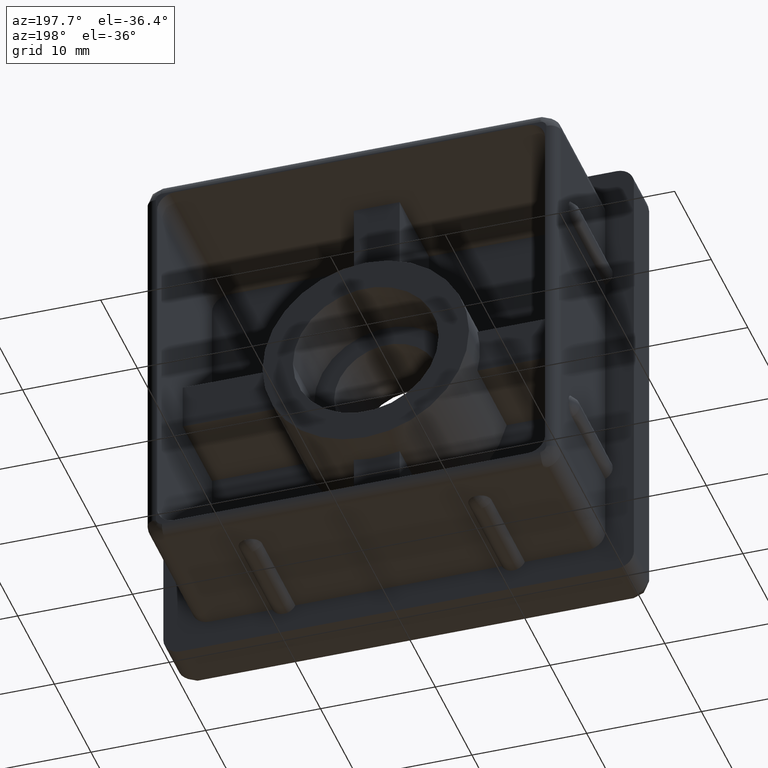
[diagram: clean part render]
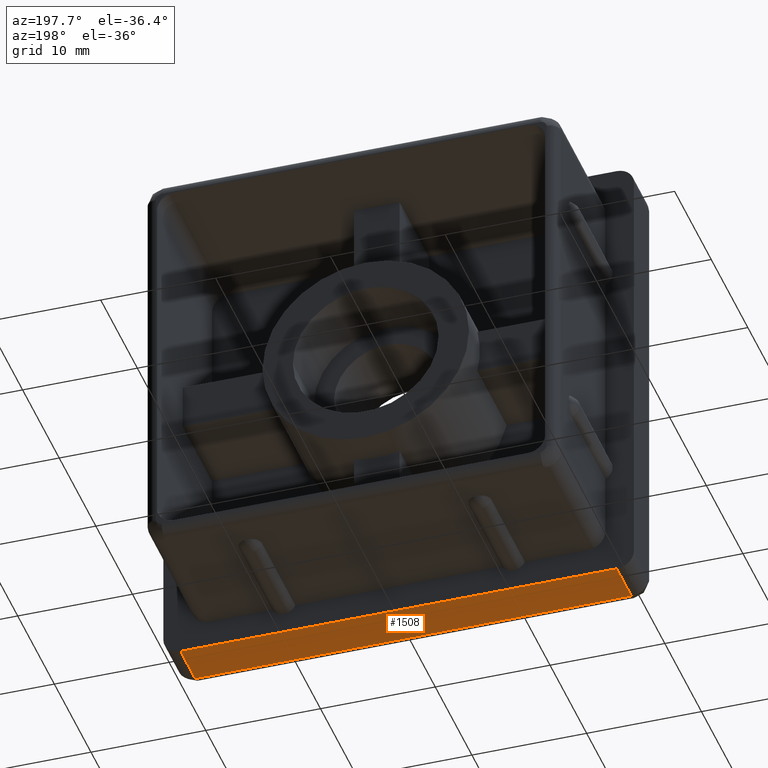
[diagram: same view with one face highlighted and labeled with its STEP entity id]
A machine part, auxiliary view. The second image highlights one B-rep face of the part: STEP entity #1508.
In plain terms, the highlighted planar face has unit normal (-0, 0, -1).
Its self-contained STEP definition (entity closure, byte-faithful):
#53=PLANE('',#1629);
#219=FACE_OUTER_BOUND('',#306,.T.);
#306=EDGE_LOOP('',(#1235,#1236,#1237,#1238));
#362=LINE('',#2974,#490);
#441=LINE('',#3248,#569);
#444=LINE('',#3253,#572);
#445=LINE('',#3255,#573);
#490=VECTOR('',#1712,38.);
#569=VECTOR('',#1939,38.);
#572=VECTOR('',#1946,4.);
#573=VECTOR('',#1949,4.);
#666=VERTEX_POINT('',#2970);
#668=VERTEX_POINT('',#2973);
#738=VERTEX_POINT('',#3178);
#753=VERTEX_POINT('',#3242);
#821=EDGE_CURVE('',#666,#668,#362,.T.);
#945=EDGE_CURVE('',#738,#753,#441,.T.);
#948=EDGE_CURVE('',#753,#666,#444,.T.);
#949=EDGE_CURVE('',#668,#738,#445,.T.);
#1235=ORIENTED_EDGE('',*,*,#945,.F.);
#1236=ORIENTED_EDGE('',*,*,#949,.F.);
#1237=ORIENTED_EDGE('',*,*,#821,.F.);
#1238=ORIENTED_EDGE('',*,*,#948,.F.);
#1508=ADVANCED_FACE('',(#219),#53,.T.);
#1629=AXIS2_PLACEMENT_3D('',#3254,#1947,#1948);
#1712=DIRECTION('',(-1.,0.,2.16628882853689E-16));
#1939=DIRECTION('',(1.,0.,-2.16628882853689E-16));
#1946=DIRECTION('',(0.,1.,0.));
#1947=DIRECTION('center_axis',(-2.16628882853689E-16,0.,-1.));
#1948=DIRECTION('ref_axis',(1.,0.,-3.5527136788005E-16));
#1949=DIRECTION('',(0.,-1.,0.));
#2970=CARTESIAN_POINT('',(19.,0.,-20.5));
#2973=CARTESIAN_POINT('',(-19.,0.,-20.5));
#2974=CARTESIAN_POINT('',(20.5,0.,-20.5));
#3178=CARTESIAN_POINT('',(-19.,-4.,-20.5));
#3242=CARTESIAN_POINT('',(19.,-4.,-20.5));
#3248=CARTESIAN_POINT('',(-10.25,-4.,-20.5));
#3253=CARTESIAN_POINT('',(19.,0.,-20.5));
#3254=CARTESIAN_POINT('Origin',(-20.5,0.,-20.5));
#3255=CARTESIAN_POINT('',(-19.,0.,-20.5));